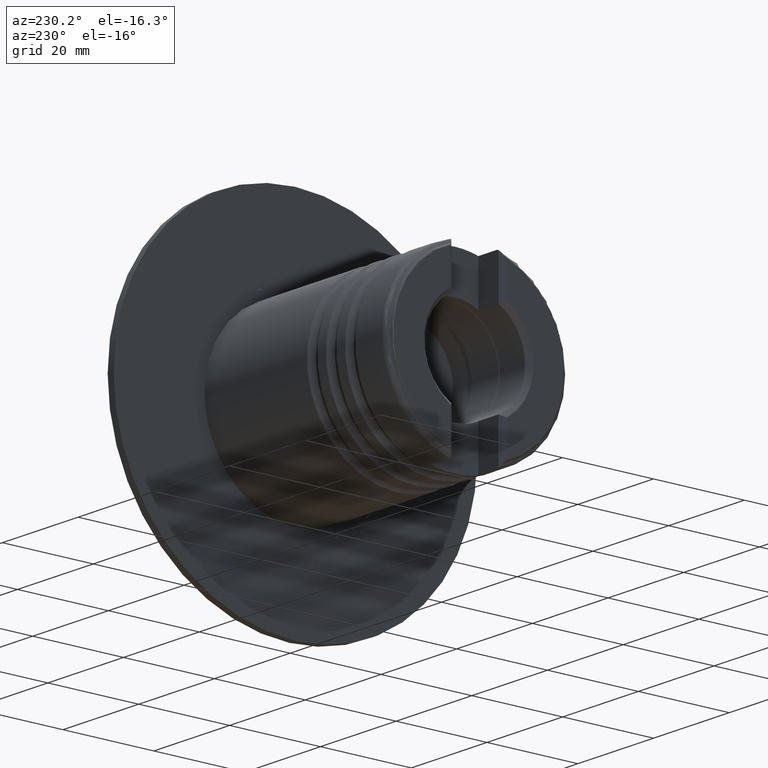
[diagram: clean part render]
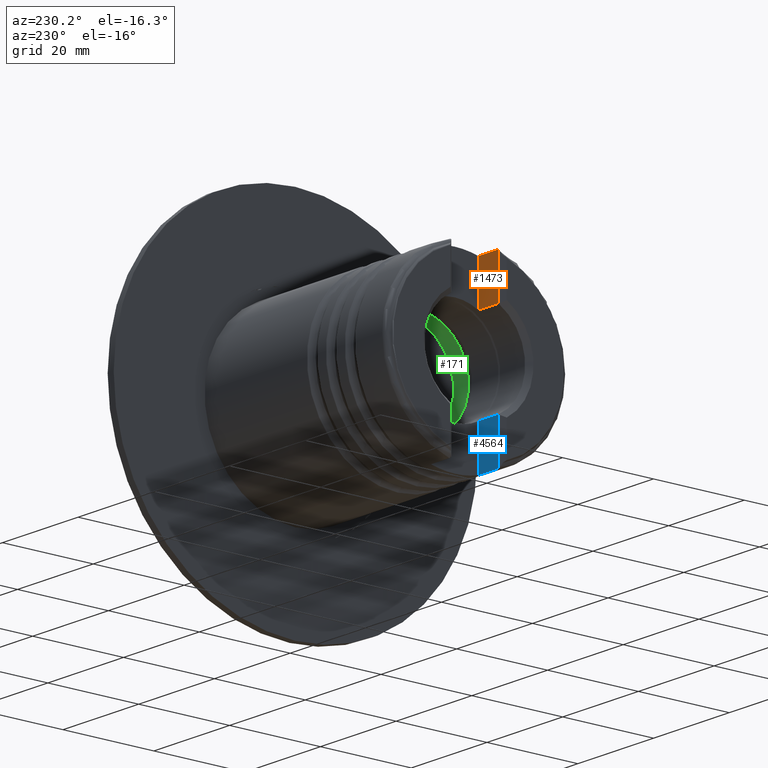
[diagram: same view with three faces highlighted in distinct colors, each labeled with its STEP entity id]
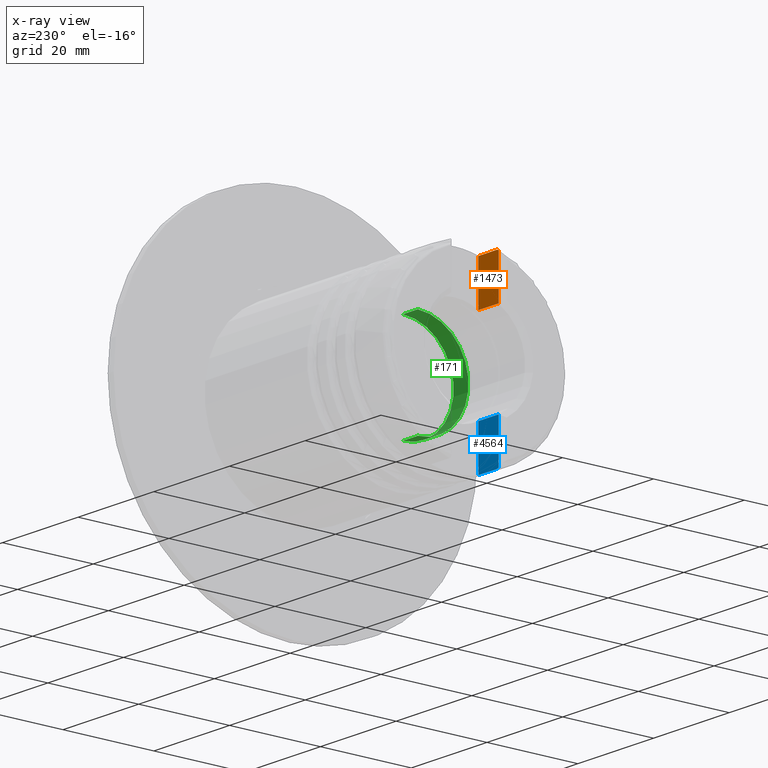
[diagram: x-ray of the same camera — body ghosted, the three highlighted faces saturated]
A machine part, auxiliary view with three faces highlighted in distinct colors.
The next image is the same camera in x-ray (body ghosted, the three faces saturated) — at least one of them is partly hidden behind the body in this view.
Their STEP definitions:

[orange] entity #1473 — the highlighted planar face has unit normal (0, -1, 0).
#23 = CARTESIAN_POINT ( 'NONE',  ( 1.701992844354598729E-15, -5.199999999999992184, 19.31217232731729538 ) ) ;
#105 = CARTESIAN_POINT ( 'NONE',  ( -43.49994866000000115, -5.200000000000005507, 19.31217232731729538 ) ) ;
#324 = CARTESIAN_POINT ( 'NONE',  ( -43.49994866000000115, -5.200000000000005507, -25.00000000000000000 ) ) ;
#652 = VECTOR ( 'NONE', #5163, 1000.000000000000000 ) ;
#677 = ORIENTED_EDGE ( 'NONE', *, *, #2935, .T. ) ;
#689 = VERTEX_POINT ( 'NONE', #3752 ) ;
#1050 = CARTESIAN_POINT ( 'NONE',  ( -48.79994866000000542, -5.200000000000007283, 19.17339211886639916 ) ) ;
#1194 = ORIENTED_EDGE ( 'NONE', *, *, #1283, .F. ) ;
#1283 = EDGE_CURVE ( 'NONE', #2117, #2950, #3890, .T. ) ;
#1293 = CARTESIAN_POINT ( 'NONE',  ( -48.29994866000000542, -5.199999999999992184, 19.31217232731729538 ) ) ;
#1351 = AXIS2_PLACEMENT_3D ( 'NONE', #324, #4528, #5394 ) ;
#1463 = CARTESIAN_POINT ( 'NONE',  ( -48.38750874696575721, -5.200000000000007283, 19.31217232731731670 ) ) ;
#1473 = ADVANCED_FACE ( 'NONE', ( #3560 ), #2426, .F. ) ;
#1483 = ORIENTED_EDGE ( 'NONE', *, *, #3270, .F. ) ;
#1505 = CARTESIAN_POINT ( 'NONE',  ( -48.79994866000000542, -5.200000000000007283, 19.17339211886639916 ) ) ;
#1597 = EDGE_CURVE ( 'NONE', #689, #2242, #3681, .T. ) ;
#1750 = DIRECTION ( 'NONE',  ( -0.0000000000000000000, -0.0000000000000000000, 1.000000000000000000 ) ) ;
#1917 = ORIENTED_EDGE ( 'NONE', *, *, #1597, .T. ) ;
#1973 = ORIENTED_EDGE ( 'NONE', *, *, #2638, .T. ) ;
#1989 = LINE ( 'NONE', #23, #3791 ) ;
#2117 = VERTEX_POINT ( 'NONE', #4962 ) ;
#2242 = VERTEX_POINT ( 'NONE', #1050 ) ;
#2426 = PLANE ( 'NONE',  #1351 ) ;
#2638 = EDGE_CURVE ( 'NONE', #2242, #3856, #2997, .T. ) ;
#2726 = VECTOR ( 'NONE', #1750, 1000.000000000000000 ) ;
#2743 = CARTESIAN_POINT ( 'NONE',  ( -48.47447387340911718, -5.200000000000007283, 19.30035282218294768 ) ) ;
#2893 = EDGE_LOOP ( 'NONE', ( #1973, #677, #1194, #1483, #1917 ) ) ;
#2935 = EDGE_CURVE ( 'NONE', #3856, #2950, #1989, .T. ) ;
#2950 = VERTEX_POINT ( 'NONE', #105 ) ;
#2997 = B_SPLINE_CURVE_WITH_KNOTS ( 'NONE', 3,
 ( #1505, #3998, #3584, #2743, #1463, #4410 ),
 .UNSPECIFIED., .F., .F.,
 ( 4, 2, 4 ),
 ( 0.002493403882429392950, 0.002755136927183648478, 0.003016869971937904005 ),
 .UNSPECIFIED. ) ;
#3270 = EDGE_CURVE ( 'NONE', #689, #2117, #4606, .T. ) ;
#3560 = FACE_OUTER_BOUND ( 'NONE', #2893, .T. ) ;
#3584 = CARTESIAN_POINT ( 'NONE',  ( -48.64463552190989049, -5.200000000000008171, 19.25297439251919585 ) ) ;
#3681 = LINE ( 'NONE', #3895, #652 ) ;
#3752 = CARTESIAN_POINT ( 'NONE',  ( -48.79994866000000542, -5.200000000000007283, 9.778324242936516697 ) ) ;
#3791 = VECTOR ( 'NONE', #4319, 1000.000000000000000 ) ;
#3856 = VERTEX_POINT ( 'NONE', #1293 ) ;
#3890 = LINE ( 'NONE', #5465, #2726 ) ;
#3895 = CARTESIAN_POINT ( 'NONE',  ( -48.79994866000000542, -5.200000000000007283, -25.00000000000000000 ) ) ;
#3998 = CARTESIAN_POINT ( 'NONE',  ( -48.72470028633892980, -5.200000000000007283, 19.21840621384119530 ) ) ;
#4141 = VECTOR ( 'NONE', #5229, 1000.000000000000000 ) ;
#4319 = DIRECTION ( 'NONE',  ( 1.000000000000000000, -0.0000000000000000000, -0.0000000000000000000 ) ) ;
#4410 = CARTESIAN_POINT ( 'NONE',  ( -48.29994866000000542, -5.199999999999992184, 19.31217232731729538 ) ) ;
#4528 = DIRECTION ( 'NONE',  ( 3.273063162220387367E-16, -1.000000000000000000, 0.0000000000000000000 ) ) ;
#4606 = LINE ( 'NONE', #4814, #4141 ) ;
#4814 = CARTESIAN_POINT ( 'NONE',  ( 1.701992844354598729E-15, -5.199999999999992184, 9.778324242936514921 ) ) ;
#4962 = CARTESIAN_POINT ( 'NONE',  ( -43.49994866000000115, -5.199999999999992184, 9.778324242936514921 ) ) ;
#5163 = DIRECTION ( 'NONE',  ( -0.0000000000000000000, -0.0000000000000000000, 1.000000000000000000 ) ) ;
#5229 = DIRECTION ( 'NONE',  ( 1.000000000000000000, -0.0000000000000000000, -0.0000000000000000000 ) ) ;
#5394 = DIRECTION ( 'NONE',  ( 1.000000000000000000, 3.273063162220387367E-16, 0.0000000000000000000 ) ) ;
#5465 = CARTESIAN_POINT ( 'NONE',  ( -43.49994866000000115, -5.200000000000005507, -25.00000000000000000 ) ) ;

[blue] entity #4564 — the highlighted planar face has unit normal (0, -1, 0).
#173 = CARTESIAN_POINT ( 'NONE',  ( -48.72431525424863707, -5.200000000000007283, -19.21863654268733868 ) ) ;
#218 = DIRECTION ( 'NONE',  ( 3.273063162220387367E-16, -1.000000000000000000, 0.0000000000000000000 ) ) ;
#256 = CARTESIAN_POINT ( 'NONE',  ( 1.701992844354598729E-15, -5.199999999999992184, -9.778324242936514921 ) ) ;
#352 = EDGE_CURVE ( 'NONE', #1974, #4608, #4991, .T. ) ;
#590 = CARTESIAN_POINT ( 'NONE',  ( -48.79994866000000542, -5.200000000000007283, -19.17339211886638495 ) ) ;
#632 = LINE ( 'NONE', #3449, #4954 ) ;
#879 = CARTESIAN_POINT ( 'NONE',  ( -48.79994866000000542, -5.200000000000007283, -19.17339211886638495 ) ) ;
#904 = CARTESIAN_POINT ( 'NONE',  ( -43.49994866000000115, -5.200000000000005507, -19.31217232731729538 ) ) ;
#1069 = VECTOR ( 'NONE', #5042, 1000.000000000000000 ) ;
#1105 = CARTESIAN_POINT ( 'NONE',  ( -43.49994866000000115, -5.200000000000005507, -25.00000000000000000 ) ) ;
#1310 = VECTOR ( 'NONE', #2371, 1000.000000000000000 ) ;
#1458 = EDGE_CURVE ( 'NONE', #1974, #2060, #4465, .T. ) ;
#1644 = EDGE_CURVE ( 'NONE', #2060, #2347, #4519, .T. ) ;
#1673 = CARTESIAN_POINT ( 'NONE',  ( 1.701992844354598729E-15, -5.199999999999992184, -19.31217232731729538 ) ) ;
#1727 = ORIENTED_EDGE ( 'NONE', *, *, #352, .T. ) ;
#1759 = CARTESIAN_POINT ( 'NONE',  ( -43.49994866000000115, -5.200000000000005507, -9.778324242936514921 ) ) ;
#1974 = VERTEX_POINT ( 'NONE', #904 ) ;
#1994 = ORIENTED_EDGE ( 'NONE', *, *, #5093, .T. ) ;
#2049 = VERTEX_POINT ( 'NONE', #879 ) ;
#2060 = VERTEX_POINT ( 'NONE', #1759 ) ;
#2244 = CARTESIAN_POINT ( 'NONE',  ( -48.64434484667071956, -5.200000000000007283, -19.25298664473529442 ) ) ;
#2347 = VERTEX_POINT ( 'NONE', #4442 ) ;
#2366 = ORIENTED_EDGE ( 'NONE', *, *, #1644, .F. ) ;
#2371 = DIRECTION ( 'NONE',  ( -1.000000000000000000, 0.0000000000000000000, 0.0000000000000000000 ) ) ;
#2696 = DIRECTION ( 'NONE',  ( 1.000000000000000000, 3.273063162220387367E-16, 0.0000000000000000000 ) ) ;
#2772 = DIRECTION ( 'NONE',  ( -0.0000000000000000000, -0.0000000000000000000, 1.000000000000000000 ) ) ;
#2969 = EDGE_CURVE ( 'NONE', #2049, #2347, #632, .T. ) ;
#3096 = CARTESIAN_POINT ( 'NONE',  ( -48.29994866000000542, -5.199999999999992184, -19.31217232731729538 ) ) ;
#3381 = EDGE_LOOP ( 'NONE', ( #1994, #3716, #2366, #5311, #1727 ) ) ;
#3449 = CARTESIAN_POINT ( 'NONE',  ( -48.79994866000000542, -5.200000000000007283, -25.00000000000000000 ) ) ;
#3716 = ORIENTED_EDGE ( 'NONE', *, *, #2969, .T. ) ;
#3783 = AXIS2_PLACEMENT_3D ( 'NONE', #5246, #218, #2696 ) ;
#3956 = CARTESIAN_POINT ( 'NONE',  ( -48.47617837960525122, -5.200000000000008171, -19.29994633938877868 ) ) ;
#3971 = CARTESIAN_POINT ( 'NONE',  ( -48.29994866000000542, -5.199999999999992184, -19.31217232731729538 ) ) ;
#4279 = VECTOR ( 'NONE', #2772, 1000.000000000000000 ) ;
#4343 = FACE_OUTER_BOUND ( 'NONE', #3381, .T. ) ;
#4442 = CARTESIAN_POINT ( 'NONE',  ( -48.79994866000000542, -5.199999999999992184, -9.778324242936514921 ) ) ;
#4465 = LINE ( 'NONE', #1105, #4279 ) ;
#4519 = LINE ( 'NONE', #256, #1310 ) ;
#4564 = ADVANCED_FACE ( 'NONE', ( #4343 ), #4723, .F. ) ;
#4608 = VERTEX_POINT ( 'NONE', #3096 ) ;
#4723 = PLANE ( 'NONE',  #3783 ) ;
#4774 = CARTESIAN_POINT ( 'NONE',  ( -48.38813753530337891, -5.200000000000007283, -19.31217232731728473 ) ) ;
#4822 = B_SPLINE_CURVE_WITH_KNOTS ( 'NONE', 3,
 ( #3971, #4774, #3956, #2244, #173, #590 ),
 .UNSPECIFIED., .F., .F.,
 ( 4, 2, 4 ),
 ( 0.006189759150747365518, 0.006450475082113490272, 0.006711191013479615892 ),
 .UNSPECIFIED. ) ;
#4954 = VECTOR ( 'NONE', #5068, 1000.000000000000000 ) ;
#4991 = LINE ( 'NONE', #1673, #1069 ) ;
#5042 = DIRECTION ( 'NONE',  ( -1.000000000000000000, 0.0000000000000000000, 0.0000000000000000000 ) ) ;
#5068 = DIRECTION ( 'NONE',  ( -0.0000000000000000000, -0.0000000000000000000, 1.000000000000000000 ) ) ;
#5093 = EDGE_CURVE ( 'NONE', #4608, #2049, #4822, .T. ) ;
#5246 = CARTESIAN_POINT ( 'NONE',  ( -43.49994866000000115, -5.200000000000005507, -25.00000000000000000 ) ) ;
#5311 = ORIENTED_EDGE ( 'NONE', *, *, #1458, .F. ) ;

[green] entity #171 — the highlighted cylindrical surface (partial cylindrical patch) has radius 11.15 mm, axis along (1, 0, 0).
#26 = LINE ( 'NONE', #2968, #2440 ) ;
#171 = ADVANCED_FACE ( 'NONE', ( #1329 ), #2686, .F. ) ;
#300 = CARTESIAN_POINT ( 'NONE',  ( -29.79994866000000897, 0.0000000000000000000, 0.0000000000000000000 ) ) ;
#397 = EDGE_CURVE ( 'NONE', #1020, #4134, #1782, .T. ) ;
#443 = AXIS2_PLACEMENT_3D ( 'NONE', #300, #2456, #4111 ) ;
#681 = ORIENTED_EDGE ( 'NONE', *, *, #1668, .T. ) ;
#1020 = VERTEX_POINT ( 'NONE', #4407 ) ;
#1220 = CARTESIAN_POINT ( 'NONE',  ( -33.73264320164238939, 1.365481181049298440E-15, 11.14999999999999680 ) ) ;
#1288 = DIRECTION ( 'NONE',  ( 1.000000000000000000, -0.0000000000000000000, -0.0000000000000000000 ) ) ;
#1329 = FACE_OUTER_BOUND ( 'NONE', #2034, .T. ) ;
#1366 = CARTESIAN_POINT ( 'NONE',  ( 0.0000000000000000000, 0.0000000000000000000, 0.0000000000000000000 ) ) ;
#1525 = VECTOR ( 'NONE', #2901, 1000.000000000000000 ) ;
#1668 = EDGE_CURVE ( 'NONE', #4443, #4134, #4587, .T. ) ;
#1773 = DIRECTION ( 'NONE',  ( 1.000000000000000000, -0.0000000000000000000, -0.0000000000000000000 ) ) ;
#1776 = DIRECTION ( 'NONE',  ( 0.0000000000000000000, 0.0000000000000000000, -1.000000000000000000 ) ) ;
#1782 = LINE ( 'NONE', #4641, #1525 ) ;
#2034 = EDGE_LOOP ( 'NONE', ( #4081, #2813, #681, #2952 ) ) ;
#2440 = VECTOR ( 'NONE', #1288, 1000.000000000000000 ) ;
#2456 = DIRECTION ( 'NONE',  ( 1.000000000000000000, -0.0000000000000000000, -0.0000000000000000000 ) ) ;
#2481 = AXIS2_PLACEMENT_3D ( 'NONE', #2640, #1773, #3864 ) ;
#2531 = EDGE_CURVE ( 'NONE', #3702, #4443, #26, .T. ) ;
#2640 = CARTESIAN_POINT ( 'NONE',  ( -33.73264320164238939, 0.0000000000000000000, 0.0000000000000000000 ) ) ;
#2686 = CYLINDRICAL_SURFACE ( 'NONE', #4576, 11.14999999999999680 ) ;
#2813 = ORIENTED_EDGE ( 'NONE', *, *, #2531, .T. ) ;
#2901 = DIRECTION ( 'NONE',  ( 1.000000000000000000, -0.0000000000000000000, -0.0000000000000000000 ) ) ;
#2952 = ORIENTED_EDGE ( 'NONE', *, *, #397, .F. ) ;
#2968 = CARTESIAN_POINT ( 'NONE',  ( 0.0000000000000000000, 1.365481181049298440E-15, 11.14999999999999680 ) ) ;
#3462 = DIRECTION ( 'NONE',  ( 1.000000000000000000, -0.0000000000000000000, -0.0000000000000000000 ) ) ;
#3702 = VERTEX_POINT ( 'NONE', #1220 ) ;
#3790 = CARTESIAN_POINT ( 'NONE',  ( -29.79994866000000897, 1.365481181049298440E-15, 11.14999999999999680 ) ) ;
#3864 = DIRECTION ( 'NONE',  ( 0.0000000000000000000, 0.0000000000000000000, -1.000000000000000000 ) ) ;
#4081 = ORIENTED_EDGE ( 'NONE', *, *, #4983, .F. ) ;
#4111 = DIRECTION ( 'NONE',  ( 0.0000000000000000000, 0.0000000000000000000, -1.000000000000000000 ) ) ;
#4134 = VERTEX_POINT ( 'NONE', #5299 ) ;
#4407 = CARTESIAN_POINT ( 'NONE',  ( -33.73264320164238939, 0.0000000000000000000, -11.14999999999999680 ) ) ;
#4443 = VERTEX_POINT ( 'NONE', #3790 ) ;
#4576 = AXIS2_PLACEMENT_3D ( 'NONE', #1366, #3462, #1776 ) ;
#4587 = CIRCLE ( 'NONE', #443, 11.14999999999999680 ) ;
#4641 = CARTESIAN_POINT ( 'NONE',  ( 0.0000000000000000000, 0.0000000000000000000, -11.14999999999999680 ) ) ;
#4983 = EDGE_CURVE ( 'NONE', #3702, #1020, #5045, .T. ) ;
#5045 = CIRCLE ( 'NONE', #2481, 11.14999999999999680 ) ;
#5299 = CARTESIAN_POINT ( 'NONE',  ( -29.79994866000000897, 0.0000000000000000000, -11.14999999999999680 ) ) ;